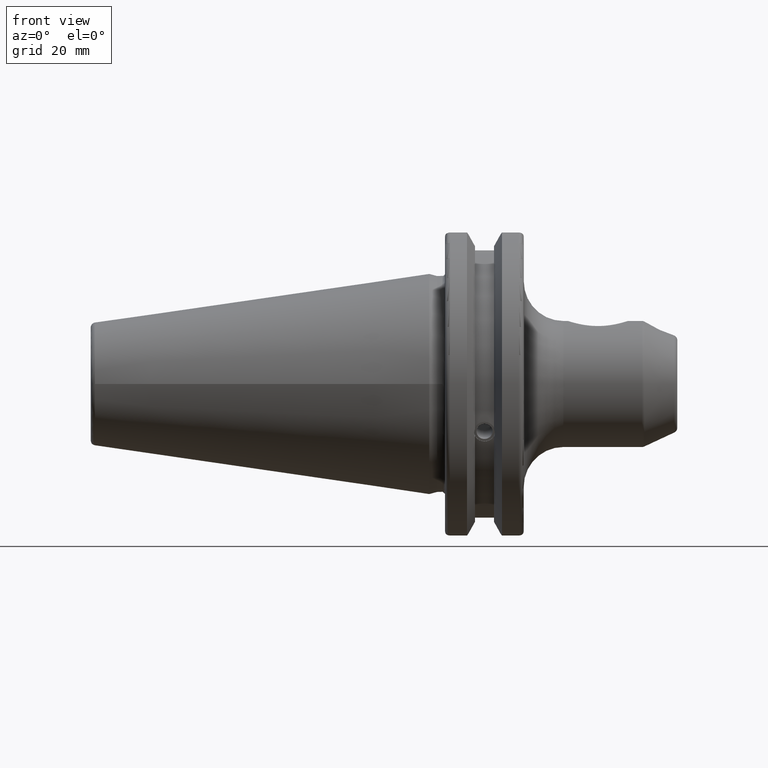
[diagram: clean part render]
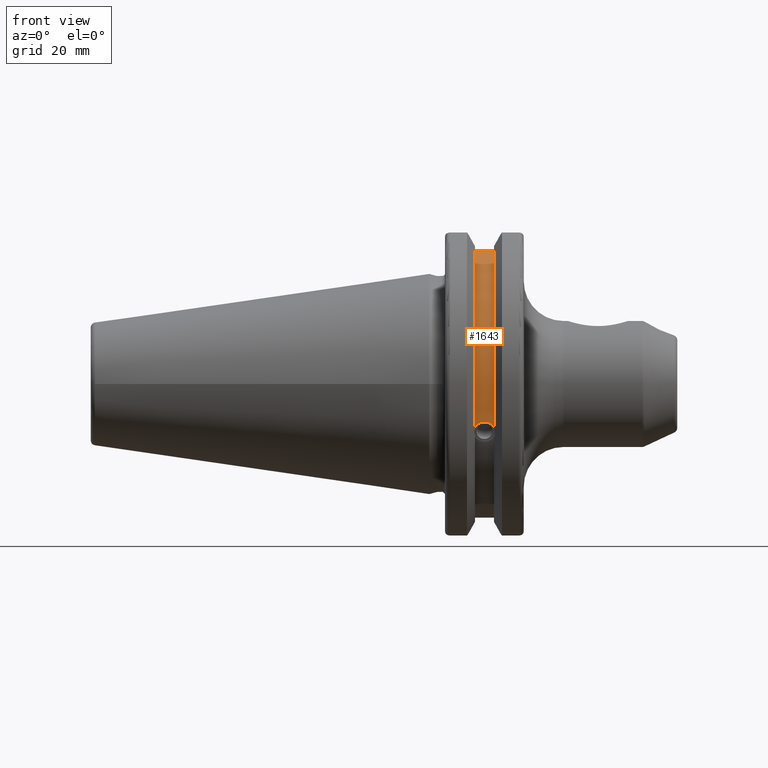
[diagram: same view with one face highlighted and labeled with its STEP entity id]
A machine part, front view. The second image highlights one B-rep face of the part: STEP entity #1643.
In plain terms, the highlighted cylindrical surface (partial cylindrical patch) has radius 28.15 mm, axis along (1, 0, 0).
Its self-contained STEP definition (entity closure, byte-faithful):
#175=CIRCLE('',#1843,28.15);
#176=CIRCLE('',#1844,28.15);
#259=FACE_OUTER_BOUND('',#364,.T.);
#364=EDGE_LOOP('',(#1483,#1484,#1485,#1486));
#393=B_SPLINE_CURVE_WITH_KNOTS('',3,(#2727,#2728,#2729,#2730,#2731,#2732,
#2733,#2734,#2735,#2736,#2737,#2738,#2739,#2740),.UNSPECIFIED.,.F.,.F.,
(4,2,2,2,2,2,4),(0.401639126382403,0.474814416953736,0.553950208498303,
0.63308600004287,0.712221791587437,0.791357583132004,0.864532873703336),
 .UNSPECIFIED.);
#486=LINE('',#3140,#583);
#583=VECTOR('',#2177,10.);
#684=VERTEX_POINT('',#2724);
#685=VERTEX_POINT('',#2726);
#768=VERTEX_POINT('',#3137);
#769=VERTEX_POINT('',#3139);
#866=EDGE_CURVE('',#685,#684,#393,.T.);
#981=EDGE_CURVE('',#769,#768,#486,.T.);
#1032=EDGE_CURVE('',#769,#684,#175,.T.);
#1033=EDGE_CURVE('',#768,#685,#176,.T.);
#1483=ORIENTED_EDGE('',*,*,#866,.T.);
#1484=ORIENTED_EDGE('',*,*,#1032,.F.);
#1485=ORIENTED_EDGE('',*,*,#981,.T.);
#1486=ORIENTED_EDGE('',*,*,#1033,.T.);
#1563=CYLINDRICAL_SURFACE('',#1842,28.15);
#1643=ADVANCED_FACE('',(#259),#1563,.T.);
#1842=AXIS2_PLACEMENT_3D('',#3288,#2285,#2286);
#1843=AXIS2_PLACEMENT_3D('',#3289,#2287,#2288);
#1844=AXIS2_PLACEMENT_3D('',#3290,#2289,#2290);
#2177=DIRECTION('',(-1.,0.,0.));
#2285=DIRECTION('center_axis',(1.,0.,0.));
#2286=DIRECTION('ref_axis',(0.,-0.887654187951484,0.46051063246378));
#2287=DIRECTION('center_axis',(1.,0.,0.));
#2288=DIRECTION('ref_axis',(0.,0.,-1.));
#2289=DIRECTION('center_axis',(1.,0.,0.));
#2290=DIRECTION('ref_axis',(0.,0.,-1.));
#2724=CARTESIAN_POINT('',(13.0491,-26.734714844398,-8.81348524641211));
#2726=CARTESIAN_POINT('',(9.2191,-26.734714844398,-8.81348524641212));
#2727=CARTESIAN_POINT('Ctrl Pts',(9.2191,-26.734714844398,-8.81348524641212));
#2728=CARTESIAN_POINT('Ctrl Pts',(9.32533057097183,-26.8086519721597,-8.58920529678291));
#2729=CARTESIAN_POINT('Ctrl Pts',(9.47682013770509,-26.8729987454904,-8.38416529997369));
#2730=CARTESIAN_POINT('Ctrl Pts',(9.83557062657411,-26.9778908791383,-8.04056861831091));
#2731=CARTESIAN_POINT('Ctrl Pts',(10.0716450112988,-27.0233016799732,-7.88512567185902));
#2732=CARTESIAN_POINT('Ctrl Pts',(10.5890125426388,-27.0826966800569,-7.6786444840004));
#2733=CARTESIAN_POINT('Ctrl Pts',(10.8703140281848,-27.0968804077294,-7.62768458768512));
#2734=CARTESIAN_POINT('Ctrl Pts',(11.3978859718152,-27.0968804077294,-7.62768458768512));
#2735=CARTESIAN_POINT('Ctrl Pts',(11.6791874573612,-27.0826966800569,-7.6786444840004));
#2736=CARTESIAN_POINT('Ctrl Pts',(12.1965549887012,-27.0233016799732,-7.88512567185902));
#2737=CARTESIAN_POINT('Ctrl Pts',(12.4326293734259,-26.9778908791383,-8.04056861831091));
#2738=CARTESIAN_POINT('Ctrl Pts',(12.7913798622949,-26.8729987454904,-8.38416529997369));
#2739=CARTESIAN_POINT('Ctrl Pts',(12.9428694290282,-26.8086519721597,-8.5892052967829));
#2740=CARTESIAN_POINT('Ctrl Pts',(13.0491,-26.734714844398,-8.81348524641211));
#3137=CARTESIAN_POINT('',(9.2191,-8.19,26.932255754021));
#3139=CARTESIAN_POINT('',(13.0491,-8.19,26.932255754021));
#3140=CARTESIAN_POINT('',(11.1341,-8.19,26.932255754021));
#3288=CARTESIAN_POINT('Origin',(11.1341,0.,0.));
#3289=CARTESIAN_POINT('Origin',(13.0491,0.,0.));
#3290=CARTESIAN_POINT('Origin',(9.2191,0.,0.));